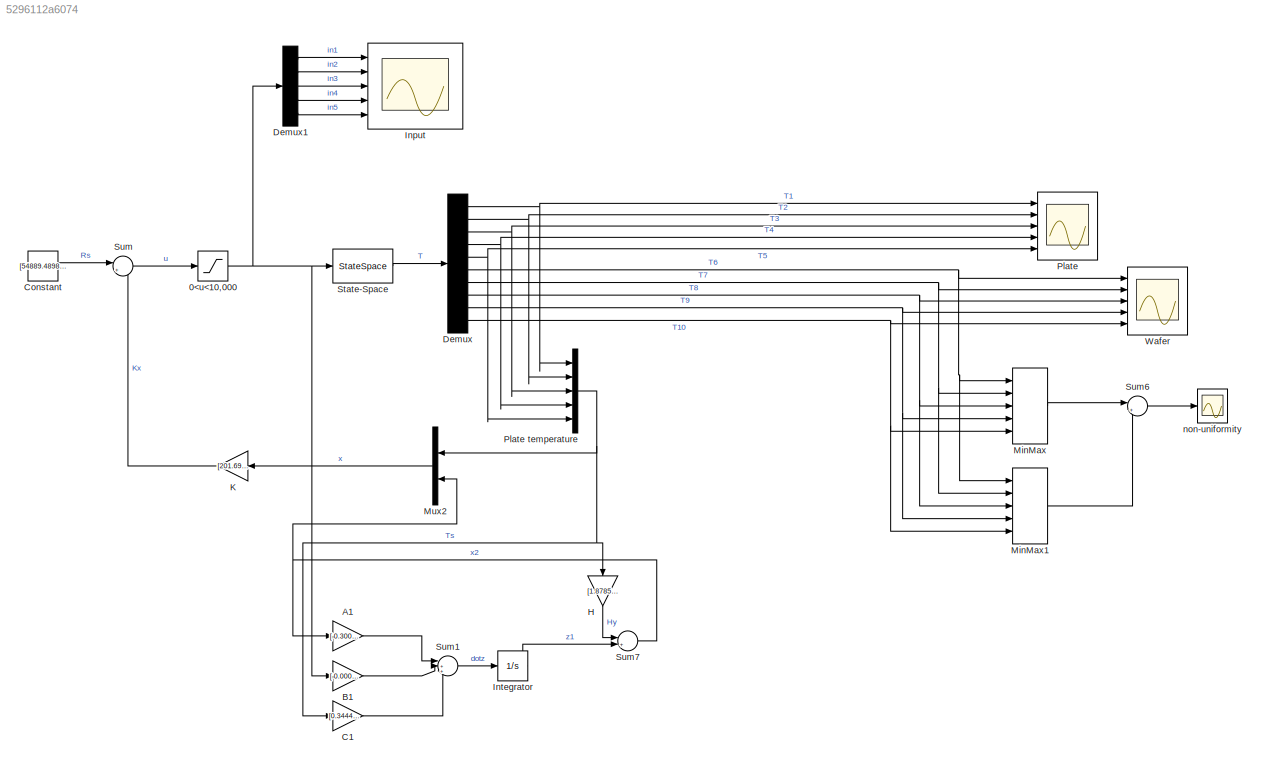
MODEL slx_5296112a6074
KIND model
CONFIG AbsTol = auto
CONFIG EnableMultiTasking = off
CONFIG FixedStep = 0.005
CONFIG MaxStep = auto
CONFIG MinStep = auto
CONFIG RelTol = 1e-8
CONFIG SampleTimeConstraint = Unconstrained
CONFIG SolverName = FixedStepAuto
CONFIG StartTime = 0.0
CONFIG StopTime = 500
BLOCK [Saturate] 0<u<10,000
  LowerLimit = 0
  UpperLimit = 10e4
BLOCK [Gain] A1
  Gain = [-0.300000000000000 0 0 0 0;0 -0.300000000000000 -6.93889390390723e-18 0 0;0 6.93889390390723e-18 -0.300000000000000 0 0;0 0 0 -0.300000000000000 6.93889390390723e-18;0 0 0 -3.46944695195361e-18 -0.300000000000000]
  Multiplication = Matrix(K*u)
BLOCK [Gain] B1
  Gain = [-0.000436741821281746 -0.000201465857250265 0 0 0;-6.71552857500885e-05 -0.000426624199007793 -0.000144428193774131 0 0;0 -8.66569162644783e-05 -0.000419989912703969 -0.000131560849563564 0;0 0 -9.39720354025459e-05 -0.000418421215569420 -0.000125814427560046;0 0 0 -9.78556658800356e-05 -0.000539793091271870]
  Multiplication = Matrix(K*u)
BLOCK [Gain] C1
  Gain = [0.344431301747057 -0.0117512821095320 -0.0385532259236173 0 0;-0.00391709403651067 0.328438474570554 -0.00521863281406086 -0.0251759540060748 0;-0.00771064518472346 -0.00313117968843653 0.330223715802212 -0.00332379586198954 -0.0219313013531552;0 -0.0107896945740321 -0.00237413990142110 0.330533705208892 -0.0231878429325686;0 0 -0.0121840563073084 -0.0180054811749444 0.324419165896115]
  Multiplication = Matrix(K*u)
BLOCK [Constant] Constant
  Value = [54889.4898644001;60552.2126497191;53779.9848506266;51528.7868501523;53069.3576318203]
BLOCK [Demux] Demux
  Outputs = 10
  Ports = [1, 10]
BLOCK [Demux] Demux1
  Outputs = 5
  Ports = [1, 5]
BLOCK [Gain] H
  Gain = [1.87857401737166 0.866572666906799 0 0 0;0.288857555635600 1.83505470826210 0.621234420380753 0 0;0 0.372740652228452 1.80651840313430 0.565887628915702 0;0 0 0.404205449225502 1.79977090716645 0.541170327886501;0 0 0 0.420910255022834 2.32183231970792]
  Multiplication = Matrix(K*u)
  NameLocation = left
BLOCK [Scope] Input
  Floating = off
  NumInputPorts = 5
  Ports = [5]
  ScopeSpecificationString = Simulink.scopes.TimeScopeBlockCfg('CurrentConfiguration', extmgr.ConfigurationSet(extmgr.Configuration('Core','General UI',true),extmgr.Configuration('Core','Source UI',true),extmgr.Configuration('Sources','WiredSimulink',true,'DataLoggingVariableName','ScopeData2'),extmgr.Configuration('Visuals','Time Domain',true,'SerializedDisplays',{struct('MinYLimReal','92.11958','MaxYLimReal','9990.62928','Y...<+1475ch>
BLOCK [Integrator] Integrator
  Ports = [1, 1]
BLOCK [Gain] K
  Gain = [201.690306054278 87.8583492911557 19.1672442465896 2.24733787981690 -0.216931739410048 113.494330532729 43.0115621820785 8.10286841568017 0.803578895911601 -0.110839651801959;87.8583492911553 196.200340440051 67.0638801209133 16.0626647370285 2.57703251064413 44.4644591138252 76.5731017337843 27.2230064504165 6.18088621949413 0.861726282607638;19.1672442465892 67.0638801209131 170.170457785174 59...<+463ch>
  Multiplication = Matrix(K*u)
  NameLocation = top
BLOCK [MinMax] MinMax
  Function = max
  Inputs = 5
  Ports = [5, 1]
BLOCK [MinMax] MinMax1
  Inputs = 5
  Ports = [5, 1]
BLOCK [Mux] Mux2
  DisplayOption = bar
  Inputs = 2
  NameLocation = top
  Ports = [2, 1]
BLOCK [Scope] Plate
  Floating = off
  NumInputPorts = 5
  Ports = [5]
  ScopeSpecificationString = Simulink.scopes.TimeScopeBlockCfg('CurrentConfiguration', extmgr.ConfigurationSet(extmgr.Configuration('Core','General UI',true),extmgr.Configuration('Core','Source UI',true),extmgr.Configuration('Sources','WiredSimulink',true),extmgr.Configuration('Visuals','Time Domain',true,'SerializedDisplays',{struct('MinYLimReal','95.78559','MaxYLimReal','116.78828','YLabelReal','','MinYLimMag','95.78559','M...<+1751ch>
BLOCK [Mux] Plate temperature
  DisplayOption = bar
  Inputs = 5
  Ports = [5, 1]
BLOCK [StateSpace] State-Space
  A = [-0.117855659679215 0.0620590628252506 0 0 0 0.0557965968539647 0 0 0 0;0.0206863542750835 -0.120972267946796 0.0444893168177479 0 0 0 0.0557965968539647 0 0 0;0 0.0266935900906488 -0.123015877698588 0.0405256907539742 0 0 0 0.0557965968539647 0 0;0 0 0.0289469219671245 -0.123499095427663 0.0387555766065743 0 0 0 0.0557965968539647 0;0 0 0 0.0301432262495578 -0.0860418872487965 0 0 0 0 0.055796596...<+409ch>
  B = [0.000232485820224853 0 0 0 0;0 0.000232485820224853 0 0 0;0 0 0.000232485820224853 0 0;0 0 0 0.000232485820224853 0;0 0 0 0 0.000232485820224853;0 0 0 0 0;0 0 0 0 0;0 0 0 0 0;0 0 0 0 0;0 0 0 0 0]
  C = [1 0 0 0 0 0 0 0 0 0;0 1 0 0 0 0 0 0 0 0;0 0 1 0 0 0 0 0 0 0;0 0 0 1 0 0 0 0 0 0;0 0 0 0 1 0 0 0 0 0;0 0 0 0 0 1 0 0 0 0;0 0 0 0 0 0 1 0 0 0;0 0 0 0 0 0 0 1 0 0;0 0 0 0 0 0 0 0 1 0;0 0 0 0 0 0 0 0 0 1]
  D = [0 0 0 0 0;0 0 0 0 0;0 0 0 0 0;0 0 0 0 0;0 0 0 0 0;0 0 0 0 0;0 0 0 0 0;0 0 0 0 0;0 0 0 0 0;0 0 0 0 0]
  InitialCondition = [114.583333333333;114.583333333333;114.583333333333;114.583333333333;114.688014403292;25;25;25;25;25]
  ParameterTunability = Unconstrained
  Ports = [1, 1]
BLOCK [Sum] Sum
  Inputs = |+-
  Ports = [2, 1]
BLOCK [Sum] Sum1
  Inputs = |+++
  Ports = [3, 1]
BLOCK [Sum] Sum6
  Inputs = |+-
  Ports = [2, 1]
BLOCK [Sum] Sum7
  Inputs = |++
  NameLocation = top
  Ports = [2, 1]
BLOCK [Scope] Wafer
  Floating = off
  NumInputPorts = 5
  Ports = [5]
  ScopeSpecificationString = Simulink.scopes.TimeScopeBlockCfg('CurrentConfiguration', extmgr.ConfigurationSet(extmgr.Configuration('Core','General UI',true),extmgr.Configuration('Core','Source UI',true),extmgr.Configuration('Sources','WiredSimulink',true,'DataLoggingVariableName','ScopeData3'),extmgr.Configuration('Visuals','Time Domain',true,'SerializedDisplays',{struct('MinYLimReal','14.375','MaxYLimReal','120.625','YLabel...<+1801ch>
BLOCK [Scope] non-uniformity
  Floating = off
  NumInputPorts = 1
  Ports = [1]
  ScopeSpecificationString = Simulink.scopes.TimeScopeBlockCfg('CurrentConfiguration', extmgr.ConfigurationSet(extmgr.Configuration('Core','General UI',true),extmgr.Configuration('Core','Source UI',true),extmgr.Configuration('Sources','WiredSimulink',true,'DataLoggingVariableName','ScopeData1'),extmgr.Configuration('Visuals','Time Domain',true,'SerializedDisplays',{struct('MinYLimReal','-0.1171','MaxYLimReal','1.05388','YLabe...<+1736ch>
NET 0<u<10,000:1 -> B1:1, Demux1:1, State-Space:1
LINE A1:1 -> Sum1:1
LINE B1:1 -> Sum1:2
LINE C1:1 -> Sum1:3
LINE Constant:1 -> Sum:1
LINE Demux1:1 -> Input:1
LINE Demux1:2 -> Input:2
LINE Demux1:3 -> Input:3
LINE Demux1:4 -> Input:4
LINE Demux1:5 -> Input:5
NET Demux:1 -> Plate temperature:1, Plate:1
NET Demux:10 -> MinMax1:5, MinMax:5, Wafer:5
NET Demux:2 -> Plate temperature:2, Plate:2
NET Demux:3 -> Plate temperature:3, Plate:3
NET Demux:4 -> Plate temperature:4, Plate:4
NET Demux:5 -> Plate temperature:5, Plate:5
NET Demux:6 -> MinMax1:1, MinMax:1, Wafer:1
NET Demux:7 -> MinMax1:2, MinMax:2, Wafer:2
NET Demux:8 -> MinMax1:3, MinMax:3, Wafer:3
NET Demux:9 -> MinMax1:4, MinMax:4, Wafer:4
LINE H:1 -> Sum7:1
LINE Integrator:1 -> Sum7:2
LINE K:1 -> Sum:2
LINE MinMax1:1 -> Sum6:2
LINE MinMax:1 -> Sum6:1
LINE Mux2:1 -> K:1
NET Plate temperature:1 -> C1:1, H:1, Mux2:1
LINE State-Space:1 -> Demux:1
LINE Sum1:1 -> Integrator:1
LINE Sum6:1 -> non-uniformity:1
NET Sum7:1 -> A1:1, Mux2:2
LINE Sum:1 -> 0<u<10,000:1
note: NET lines group one-source signal fan-out (src -> all destinations, sorted); 1:1 wires keep LINE
